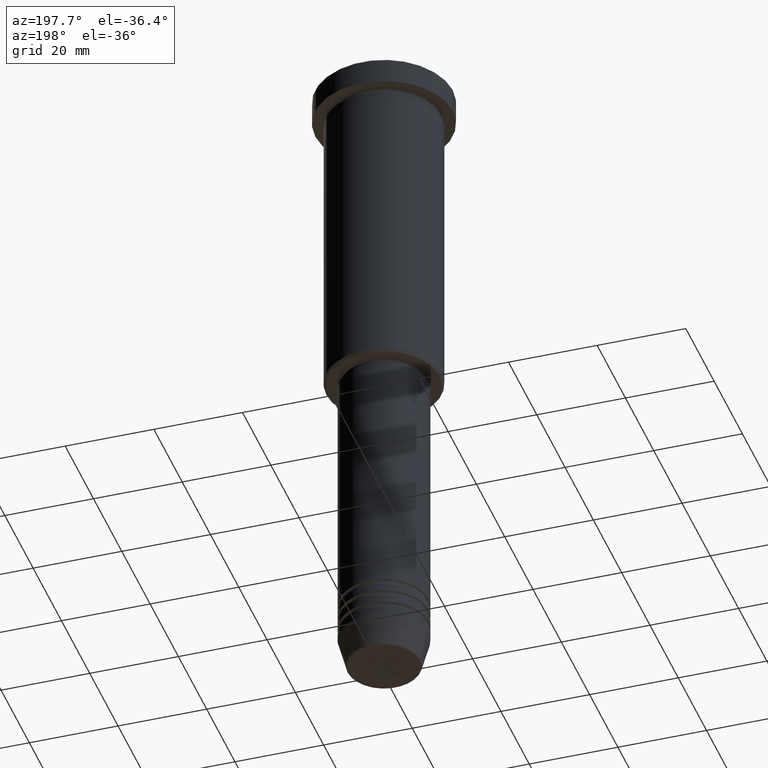
[diagram: clean part render]
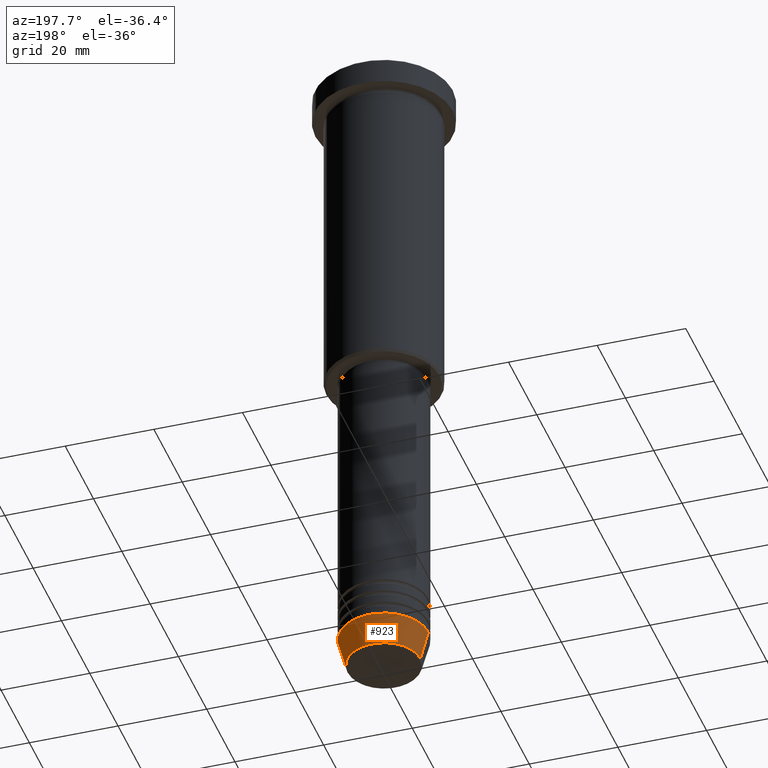
[diagram: same view with one face highlighted and labeled with its STEP entity id]
A machine part, auxiliary view. The second image highlights one B-rep face of the part: STEP entity #923.
In plain terms, the highlighted conical surface has half-angle 15 deg.
Its self-contained STEP definition (entity closure, byte-faithful):
#7 = CIRCLE ( 'NONE', #685, 10.00000000000000000 ) ;
#23 = CARTESIAN_POINT ( 'NONE',  ( -8.223655072137198374, 1.115877042642912448E-15, -150.6294095225512137 ) ) ;
#110 = CARTESIAN_POINT ( 'NONE',  ( -10.00000000000000000, 1.224646799147353256E-15, -144.0000000000000000 ) ) ;
#144 = VECTOR ( 'NONE', #995, 1000.000000000000000 ) ;
#194 = DIRECTION ( 'NONE',  ( -0.000000000000000000, -0.000000000000000000, 1.000000000000000000 ) ) ;
#197 = ORIENTED_EDGE ( 'NONE', *, *, #302, .F. ) ;
#209 = ORIENTED_EDGE ( 'NONE', *, *, #927, .T. ) ;
#259 = EDGE_CURVE ( 'NONE', #622, #1118, #790, .T. ) ;
#264 = CARTESIAN_POINT ( 'NONE',  ( 0.000000000000000000, 0.000000000000000000, -144.0000000000000000 ) ) ;
#280 = VECTOR ( 'NONE', #700, 1000.000000000000000 ) ;
#294 = DIRECTION ( 'NONE',  ( 1.000000000000000000, 0.000000000000000000, 0.000000000000000000 ) ) ;
#302 = EDGE_CURVE ( 'NONE', #1118, #1110, #7, .T. ) ;
#317 = AXIS2_PLACEMENT_3D ( 'NONE', #488, #194, #294 ) ;
#383 = CARTESIAN_POINT ( 'NONE',  ( 8.223655072137198374, 0.000000000000000000, -150.6294095225512137 ) ) ;
#416 = DIRECTION ( 'NONE',  ( -0.000000000000000000, -0.000000000000000000, 1.000000000000000000 ) ) ;
#488 = CARTESIAN_POINT ( 'NONE',  ( 0.000000000000000000, 0.000000000000000000, -150.6294095225512137 ) ) ;
#492 = CARTESIAN_POINT ( 'NONE',  ( 10.00000000000000000, 0.000000000000000000, -144.0000000000000000 ) ) ;
#524 = CONICAL_SURFACE ( 'NONE', #692, 10.00000000000000000, 0.2617993877991500740 ) ;
#535 = EDGE_CURVE ( 'NONE', #622, #703, #1038, .T. ) ;
#547 = FACE_OUTER_BOUND ( 'NONE', #864, .T. ) ;
#606 = CARTESIAN_POINT ( 'NONE',  ( 0.000000000000000000, 0.000000000000000000, -144.0000000000000000 ) ) ;
#622 = VERTEX_POINT ( 'NONE', #383 ) ;
#634 = DIRECTION ( 'NONE',  ( 1.000000000000000000, 0.000000000000000000, 0.000000000000000000 ) ) ;
#638 = ORIENTED_EDGE ( 'NONE', *, *, #535, .T. ) ;
#685 = AXIS2_PLACEMENT_3D ( 'NONE', #606, #416, #779 ) ;
#692 = AXIS2_PLACEMENT_3D ( 'NONE', #264, #906, #634 ) ;
#700 = DIRECTION ( 'NONE',  ( 0.2588190451025213501, 0.000000000000000000, 0.9659258262890680902 ) ) ;
#703 = VERTEX_POINT ( 'NONE', #23 ) ;
#779 = DIRECTION ( 'NONE',  ( 1.000000000000000000, 0.000000000000000000, 0.000000000000000000 ) ) ;
#790 = LINE ( 'NONE', #1142, #280 ) ;
#814 = CARTESIAN_POINT ( 'NONE',  ( -10.00000000000000000, 1.224646799147353256E-15, -144.0000000000000000 ) ) ;
#845 = ORIENTED_EDGE ( 'NONE', *, *, #259, .F. ) ;
#864 = EDGE_LOOP ( 'NONE', ( #638, #209, #197, #845 ) ) ;
#896 = LINE ( 'NONE', #814, #144 ) ;
#906 = DIRECTION ( 'NONE',  ( -0.000000000000000000, -0.000000000000000000, 1.000000000000000000 ) ) ;
#923 = ADVANCED_FACE ( 'NONE', ( #547 ), #524, .T. ) ;
#927 = EDGE_CURVE ( 'NONE', #703, #1110, #896, .T. ) ;
#995 = DIRECTION ( 'NONE',  ( -0.2588190451025213501, 3.169619151431772337E-17, 0.9659258262890680902 ) ) ;
#1038 = CIRCLE ( 'NONE', #317, 8.223655072137198374 ) ;
#1110 = VERTEX_POINT ( 'NONE', #110 ) ;
#1118 = VERTEX_POINT ( 'NONE', #492 ) ;
#1142 = CARTESIAN_POINT ( 'NONE',  ( 10.00000000000000000, 0.000000000000000000, -144.0000000000000000 ) ) ;